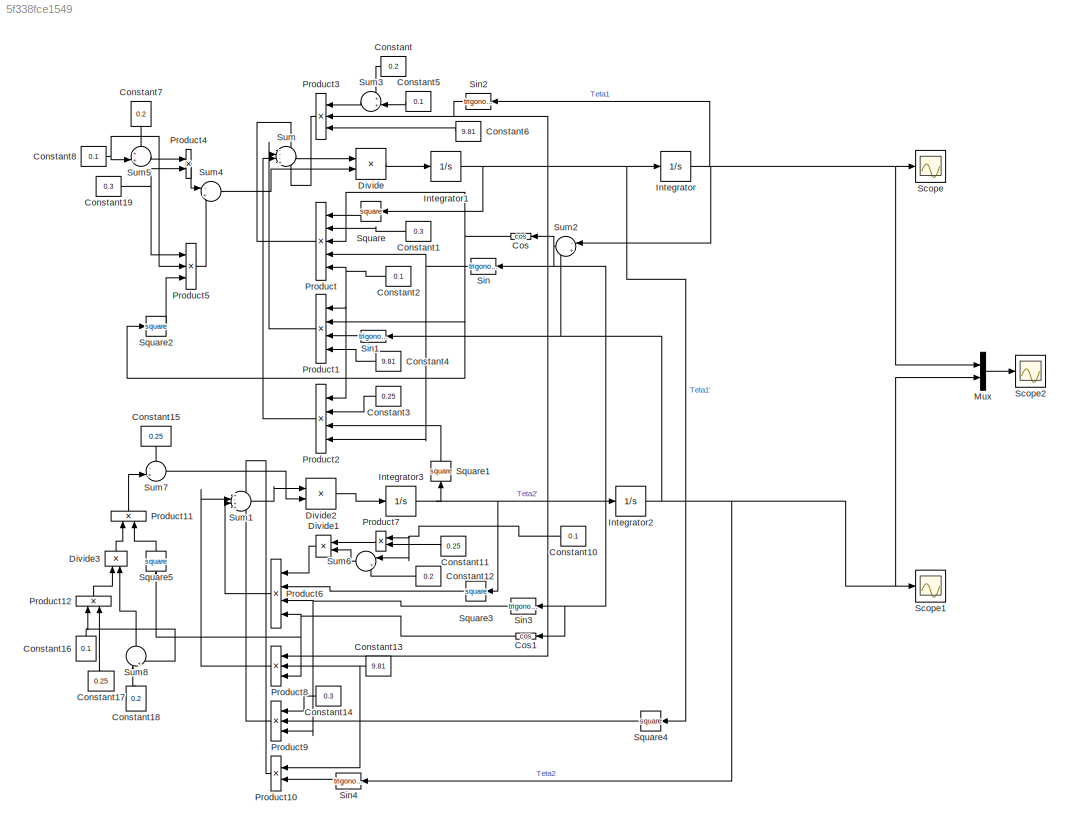
MODEL slx_5f338fce1549
KIND model
CONFIG AbsTol = auto
CONFIG EnableMultiTasking = off
CONFIG FixedStep = auto
CONFIG MaxStep = auto
CONFIG MinStep = auto
CONFIG RelTol = 1e-3
CONFIG SampleTimeConstraint = Unconstrained
CONFIG SolverName = ode23
CONFIG StartTime = 0.0
CONFIG StopTime = 200
BLOCK [Constant] Constant
  NameLocation = top
  Value = 0.2
BLOCK [Constant] Constant1
  NameLocation = top
  Value = 0.3
BLOCK [Constant] Constant10
  NameLocation = top
  Value = 0.1
BLOCK [Constant] Constant11
  NameLocation = top
  Value = 0.25
BLOCK [Constant] Constant12
  NameLocation = top
  Value = 0.2
BLOCK [Constant] Constant13
  NameLocation = top
  Value = 9.81
BLOCK [Constant] Constant14
  NameLocation = top
  Value = 0.3
BLOCK [Constant] Constant15
  NameLocation = left
  Value = 0.25
BLOCK [Constant] Constant16
  NameLocation = right
  Value = 0.1
BLOCK [Constant] Constant17
  NameLocation = right
  Value = 0.25
BLOCK [Constant] Constant18
  NameLocation = right
  Value = 0.2
BLOCK [Constant] Constant19
  Value = 0.3
BLOCK [Constant] Constant2
  NameLocation = top
  Value = 0.1
BLOCK [Constant] Constant3
  NameLocation = top
  Value = 0.25
BLOCK [Constant] Constant4
  NameLocation = top
  Value = 9.81
BLOCK [Constant] Constant5
  NameLocation = top
  Value = 0.1
BLOCK [Constant] Constant6
  NameLocation = top
  Value = 9.81
BLOCK [Constant] Constant7
  NameLocation = left
  Value = 0.2
BLOCK [Constant] Constant8
  Value = 0.1
BLOCK [Trigonometry] Cos
  NameLocation = top
  Operator = cos
BLOCK [Trigonometry] Cos1
  NameLocation = top
  Operator = cos
BLOCK [Product] Divide
  Inputs = */
BLOCK [Product] Divide1
  Inputs = */
  NameLocation = top
BLOCK [Product] Divide2
  Inputs = */
BLOCK [Product] Divide3
  Inputs = */
  NameLocation = right
BLOCK [Integrator] Integrator
BLOCK [Integrator] Integrator1
BLOCK [Integrator] Integrator2
  InitialCondition = 0.610865
BLOCK [Integrator] Integrator3
BLOCK [Mux] Mux
  DisplayOption = bar
  Inputs = 2
BLOCK [Product] Product
  Inputs = 5
  NameLocation = top
BLOCK [Product] Product1
  Inputs = 4
  NameLocation = top
BLOCK [Product] Product10
  NameLocation = top
BLOCK [Product] Product11
  NameLocation = right
BLOCK [Product] Product12
  NameLocation = right
BLOCK [Product] Product2
  Inputs = 4
  NameLocation = top
BLOCK [Product] Product3
  Inputs = 3
  NameLocation = top
BLOCK [Product] Product4
BLOCK [Product] Product5
  Inputs = 3
BLOCK [Product] Product6
  Inputs = 4
  NameLocation = top
BLOCK [Product] Product7
  NameLocation = top
BLOCK [Product] Product8
  Inputs = 3
  NameLocation = top
BLOCK [Product] Product9
  Inputs = 3
  NameLocation = top
BLOCK [Scope] Scope
  Floating = off
  NumInputPorts = 1
  ScopeSpecificationString = Simulink.scopes.TimeScopeBlockCfg('CurrentConfiguration', extmgr.ConfigurationSet(extmgr.Configuration('Core','General UI',true),extmgr.Configuration('Core','Source UI',true),extmgr.Configuration('Sources','WiredSimulink',true),extmgr.Configuration('Visuals','Time Domain',true),extmgr.Configuration('Tools','Plot Navigation',true),extmgr.Configuration('Tools','Measurements',true)),'Version','2023b'...<+1ch>
BLOCK [Scope] Scope1
  Floating = off
  NumInputPorts = 1
  ScopeSpecificationString = Simulink.scopes.TimeScopeBlockCfg('CurrentConfiguration', extmgr.ConfigurationSet(extmgr.Configuration('Core','General UI',true),extmgr.Configuration('Core','Source UI',true),extmgr.Configuration('Sources','WiredSimulink',true,'DataLoggingVariableName','ScopeData1'),extmgr.Configuration('Visuals','Time Domain',true),extmgr.Configuration('Tools','Plot Navigation',true),extmgr.Configuration('Tools',...<+40ch>
BLOCK [Scope] Scope2
  Floating = off
  NumInputPorts = 1
  ScopeSpecificationString = Simulink.scopes.TimeScopeBlockCfg('CurrentConfiguration', extmgr.ConfigurationSet(extmgr.Configuration('Core','General UI',true),extmgr.Configuration('Core','Source UI',true),extmgr.Configuration('Sources','WiredSimulink',true,'DataLoggingVariableName','ScopeData2'),extmgr.Configuration('Visuals','Time Domain',true,'SerializedDisplays',{struct('MinYLimReal','-0.73519','MaxYLimReal','0.76043','YLab...<+1402ch>
BLOCK [Trigonometry] Sin
  NameLocation = top
BLOCK [Trigonometry] Sin1
  NameLocation = top
BLOCK [Trigonometry] Sin2
  NameLocation = top
BLOCK [Trigonometry] Sin3
  NameLocation = top
BLOCK [Trigonometry] Sin4
  NameLocation = top
BLOCK [Math] Square
  NameLocation = top
  Operator = square
BLOCK [Math] Square1
  NameLocation = right
  Operator = square
BLOCK [Math] Square2
  Operator = square
BLOCK [Math] Square3
  NameLocation = top
  Operator = square
BLOCK [Math] Square4
  NameLocation = top
  Operator = square
BLOCK [Math] Square5
  NameLocation = right
  Operator = square
BLOCK [Sum] Sum
  Inputs = ---+
BLOCK [Sum] Sum1
  Inputs = +-++
BLOCK [Sum] Sum2
  Inputs = -+
  NameLocation = top
BLOCK [Sum] Sum3
  Inputs = ++|
  NameLocation = top
BLOCK [Sum] Sum4
  Inputs = -+
BLOCK [Sum] Sum5
  Inputs = ++|
BLOCK [Sum] Sum6
  Inputs = |++
  NameLocation = top
BLOCK [Sum] Sum7
  Inputs = -+|
BLOCK [Sum] Sum8
  Inputs = |++
  NameLocation = right
NET Constant10:1 -> Product7:1, Sum6:1
LINE Constant11:1 -> Product7:2
LINE Constant12:1 -> Sum6:2
NET Constant13:1 -> Product10:1, Product8:2
LINE Constant14:1 -> Product9:1
LINE Constant15:1 -> Sum7:1
NET Constant16:1 -> Product12:1, Sum8:2
LINE Constant17:1 -> Product12:2
LINE Constant18:1 -> Sum8:1
NET Constant19:1 -> Product4:2, Product5:1
LINE Constant1:1 -> Product:2
NET Constant2:1 -> Product1:1, Product2:1, Product:5
LINE Constant3:1 -> Product2:2
LINE Constant4:1 -> Product1:4
LINE Constant5:1 -> Sum3:2
LINE Constant6:1 -> Product3:3
LINE Constant7:1 -> Sum5:1
NET Constant8:1 -> Product5:2, Sum5:2
LINE Constant:1 -> Sum3:1
NET Cos1:1 -> Product6:4, Product8:3, Square5:1
NET Cos:1 -> Product1:2, Product:3, Square2:1
LINE Divide1:1 -> Product6:1
LINE Divide2:1 -> Integrator3:1
LINE Divide3:1 -> Product11:1
LINE Divide:1 -> Integrator1:1
NET Integrator1:1 -> Integrator:1, Square4:1, Square:1
NET Integrator2:1 -> Mux:2, Scope1:1, Sin1:1, Sin4:1, Sum2:2
NET Integrator3:1 -> Integrator2:1, Square1:1, Square3:1
NET Integrator:1 -> Mux:1, Scope:1, Sin2:1, Sum2:1
LINE Mux:1 -> Scope2:1
LINE Product10:1 -> Sum1:1
LINE Product11:1 -> Sum7:2
LINE Product12:1 -> Divide3:1
LINE Product1:1 -> Sum:2
LINE Product2:1 -> Sum:3
LINE Product3:1 -> Sum:4
LINE Product4:1 -> Sum4:1
LINE Product5:1 -> Sum4:2
LINE Product6:1 -> Sum1:3
LINE Product7:1 -> Divide1:1
LINE Product8:1 -> Sum1:2
LINE Product9:1 -> Sum1:4
LINE Product:1 -> Sum:1
LINE Sin1:1 -> Product1:3
NET Sin2:1 -> Product3:2, Product8:1
NET Sin3:1 -> Product6:3, Product9:3
LINE Sin4:1 -> Product10:2
NET Sin:1 -> Product2:4, Product:4
LINE Square1:1 -> Product2:3
LINE Square2:1 -> Product5:3
LINE Square3:1 -> Product6:2
LINE Square4:1 -> Product9:2
LINE Square5:1 -> Product11:2
LINE Square:1 -> Product:1
LINE Sum1:1 -> Divide2:1
NET Sum2:1 -> Cos1:1, Cos:1, Sin3:1, Sin:1
LINE Sum3:1 -> Product3:1
LINE Sum4:1 -> Divide:2
LINE Sum5:1 -> Product4:1
LINE Sum6:1 -> Divide1:2
LINE Sum7:1 -> Divide2:2
LINE Sum8:1 -> Divide3:2
LINE Sum:1 -> Divide:1
note: NET lines group one-source signal fan-out (src -> all destinations, sorted); 1:1 wires keep LINE
